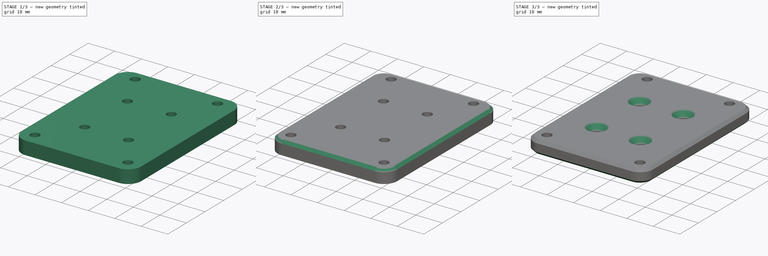
[diagram: build sequence overview — one tinted view per stage of 3, left to right]
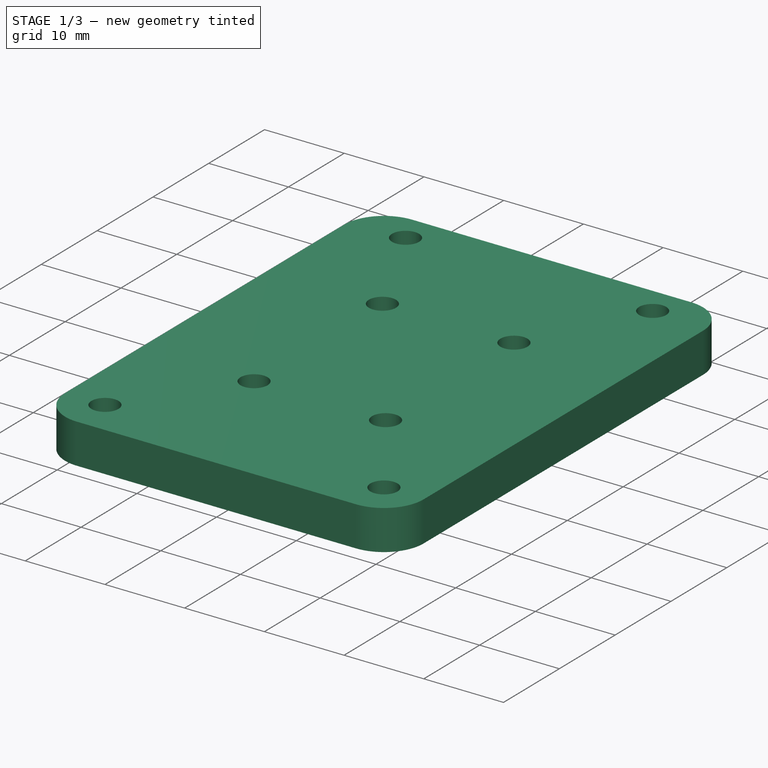
[diagram: stage 1 of 3 — iso view after this stage's code; geometry added in this stage tinted green]
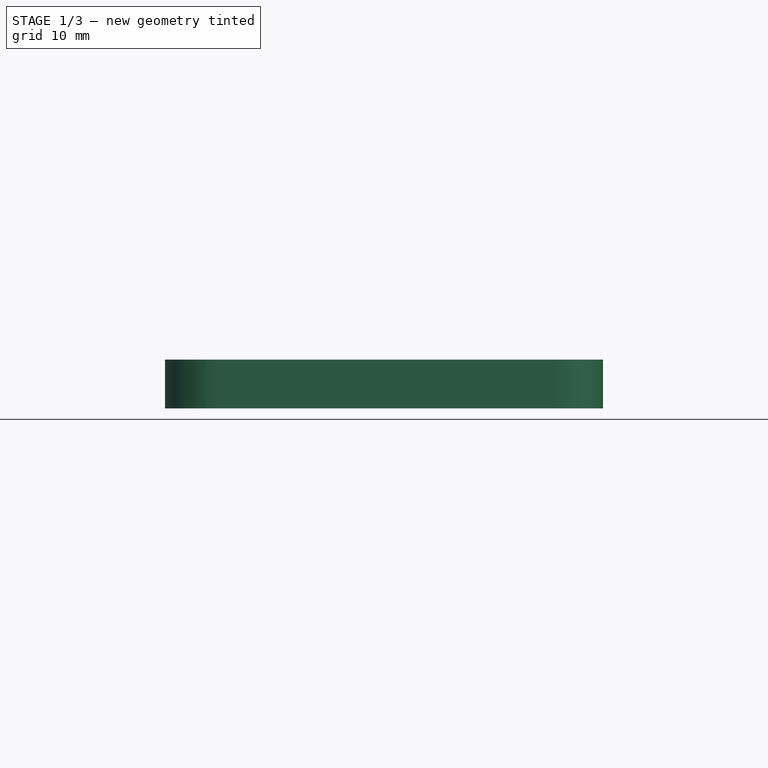
[diagram: stage 1 of 3 — front view after this stage's code; geometry added in this stage tinted green]
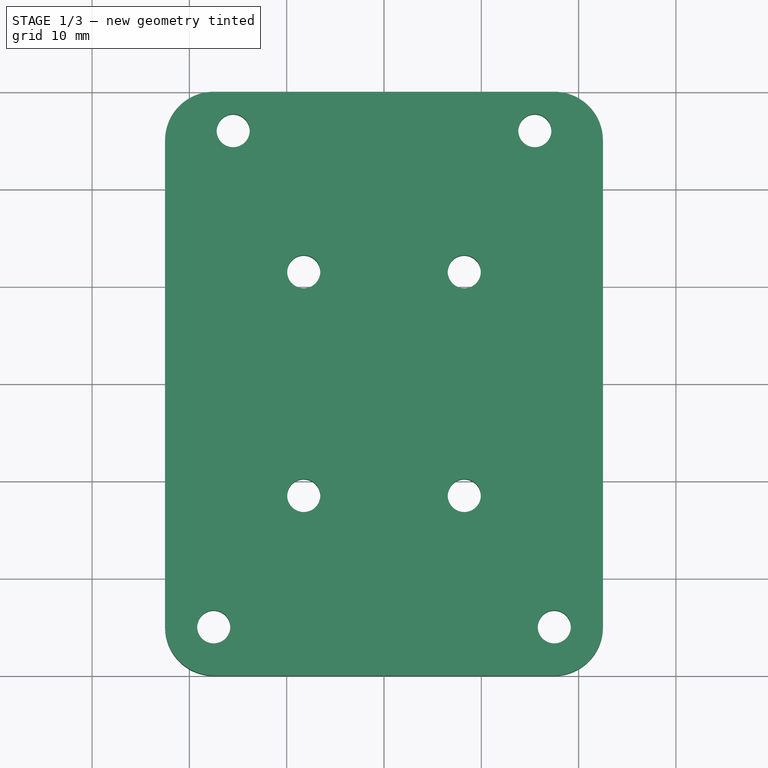
[diagram: stage 1 of 3 — top view after this stage's code; geometry added in this stage tinted green]
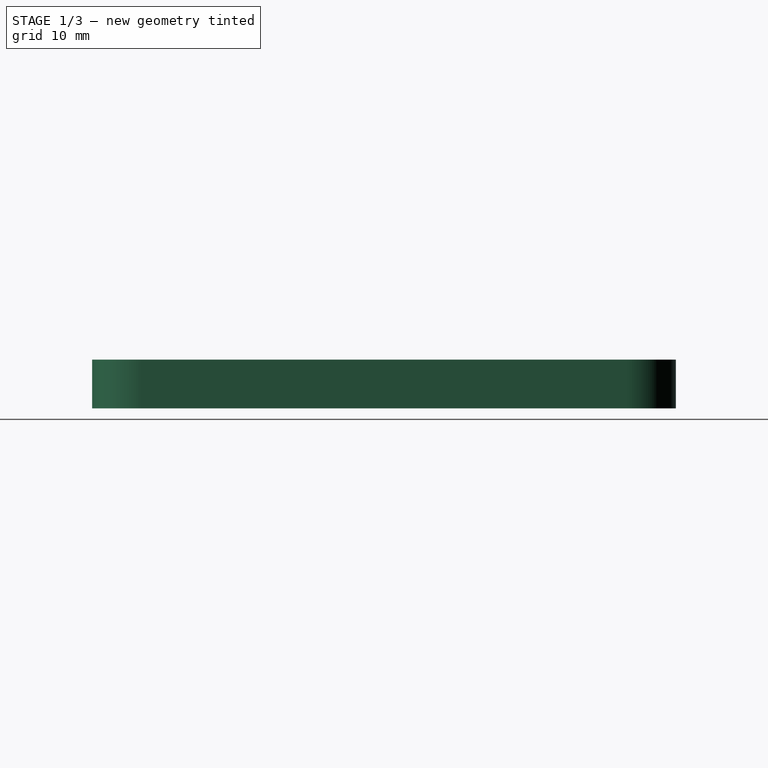
[diagram: stage 1 of 3 — right view after this stage's code; geometry added in this stage tinted green]
FCSTD DOCUMENT  (FreeCAD 0.21R33771 (Git))
Label: oriber3-tap-bracke-second-attempt
License: All rights reserved
LicenseURL: http://en.wikipedia.org/wiki/All_rights_reserved
objects: PartDesign::Chamfer×3, Sketcher::SketchObject×1, PartDesign::Pad×1, PartDesign::Fillet×1, PartDesign::Body×1
note: 12 computed .brp shape members not serialized (recipe doc carries the construction recipe); baked Part::Feature solids carry a one-line shape summary decoded from their .brp

FEATURE [Sketcher::SketchObject] Sketch
  FullyConstrained = false
  MapMode = 5
  Support = -> [XY_Plane]
  sketch-geometry (16):
    g0: LineSegment StartX=22.503 StartY=30 StartZ=0 EndX=22.503 EndY=-30 EndZ=0
    g1: LineSegment StartX=22.503 StartY=-30 StartZ=0 EndX=-22.5832 EndY=-30 EndZ=0
    g2: Circle CenterX=-15.5 CenterY=26 CenterZ=0 NormalX=0 NormalY=0 NormalZ=1 AngleXU=0 Radius=1.7
    g3: Circle CenterX=15.5 CenterY=26 CenterZ=0 NormalX=0 NormalY=0 NormalZ=1 AngleXU=0 Radius=1.7
    g4: Circle CenterX=-17.5 CenterY=-25 CenterZ=0 NormalX=0 NormalY=0 NormalZ=1 AngleXU=0 Radius=1.7
    g5: Circle CenterX=17.5 CenterY=-25 CenterZ=0 NormalX=0 NormalY=0 NormalZ=1 AngleXU=0 Radius=1.7
    g6: Circle CenterX=8.25 CenterY=11.5 CenterZ=0 NormalX=0 NormalY=0 NormalZ=1 AngleXU=0 Radius=1.7
    g7: Circle CenterX=-8.25 CenterY=-11.5 CenterZ=0 NormalX=0 NormalY=0 NormalZ=1 AngleXU=0 Radius=1.7
    g8: Circle CenterX=8.25 CenterY=-11.5 CenterZ=0 NormalX=0 NormalY=0 NormalZ=1 AngleXU=0 Radius=1.7
    g9: Circle CenterX=-8.25 CenterY=11.5 CenterZ=0 NormalX=0 NormalY=0 NormalZ=1 AngleXU=0 Radius=1.7
    g10: LineSegment StartX=22.503 StartY=27.4562 StartZ=0 EndX=-22.9253 EndY=27.4562 EndZ=0
    g11: LineSegment StartX=-22.9253 StartY=27.4562 StartZ=0 EndX=-22.9253 EndY=17.4562 EndZ=0
    g12: LineSegment StartX=-22.9253 StartY=17.4562 StartZ=0 EndX=-11.8787 EndY=11.8436 EndZ=0
    g13: LineSegment StartX=-11.8787 StartY=11.8436 StartZ=0 EndX=-11.8787 EndY=-11.5171 EndZ=0
    g14: LineSegment StartX=-11.8787 StartY=-11.5171 StartZ=0 EndX=-22.5832 EndY=-14.7061 EndZ=0
    g15: LineSegment StartX=-22.5832 StartY=-14.7061 StartZ=0 EndX=-22.5832 EndY=-30 EndZ=0
  constraints (40):
    c: Coincident(g0,g1)
    c: Horizontal(g1)
    c: Vertical(g0)
    c: DistanceY(g0,g0) = 60
    c: Diameter(g2) = 3.4
    c: DistanceY(g-1,g2) = 26
    c: DistanceX(g2,g-1) = 15.5
    c: Diameter(g3) = 3.4
    c: Diameter(g4) = 3.4
    c: Diameter(g5) = 3.4
    c: DistanceY(g2,g3) = 0
    c: DistanceY(g4,g5) = 0
    c: DistanceY(g4,g2) = 51
    c: DistanceX(g4,g-1) = 17.5
    c: DistanceX(g4,g5) = 35
    c: DistanceX(g2,g3) = 31
    c: Diameter(g6) = 3.4
    c: Diameter(g9) = 3.4
    c: Diameter(g8) = 3.4
    c: Diameter(g7) = 3.4
    c: DistanceY(g6,g9) = 0
    c: DistanceX(g6,g8) = 0
    c: DistanceX(g7,g9) = 0
    c: DistanceY(g8,g6) = 23
    c: DistanceY(g8,g7) = 0
    c: DistanceX(g9,g6) = 16.5
    c: DistanceX(g9,g-1) = 8.25
    c: DistanceY(g-1,g6) = 11.5
    c: PointOnObject(g10,g0)
    c: Horizontal(g10)
    c: Coincident(g10,g11)
    c: Vertical(g11)
    c: Coincident(g11,g12)
    c: Coincident(g12,g13)
    c: Vertical(g13)
    c: Coincident(g13,g14)
    c: Coincident(g14,g15)
    c: Coincident(g15,g1)
    c: Perpendicular(g1,g15)
    c: DistanceY(g11,g11) = 10
FEATURE [PartDesign::Pad] Pad
  Direction = (0,0,1)
  Length = 5
  Length2 = 10
  Profile = -> Sketch
  ReferenceAxis = -> Sketch [N_Axis]
  Type = 0
FEATURE [PartDesign::Fillet] Fillet
  Base = -> Pad [Edge8,Edge1,Edge5,Edge2]
  BaseFeature = -> Pad
  Radius = 5
  SupportTransform = false
  UseAllEdges = false
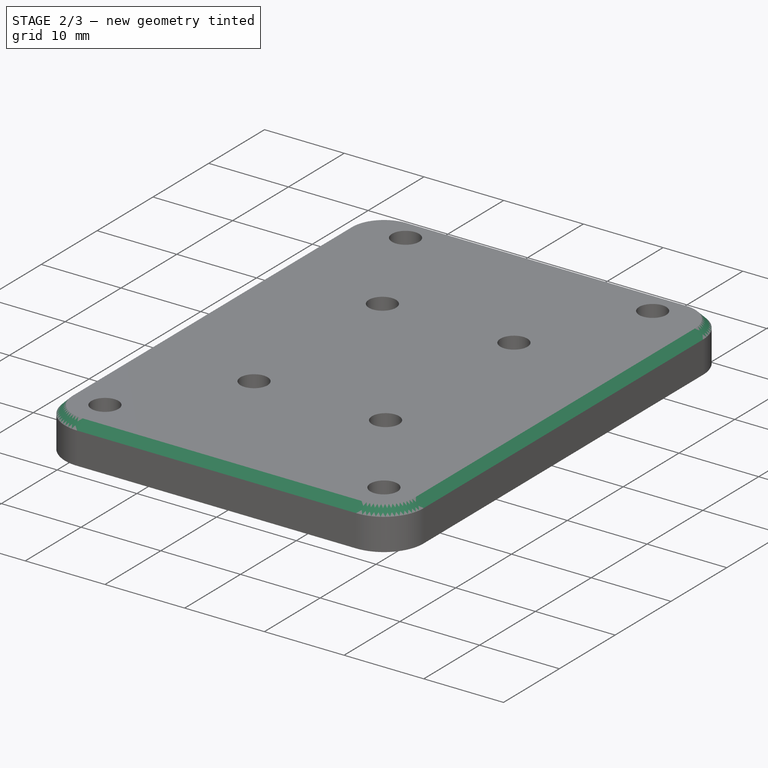
[diagram: stage 2 of 3 — iso view after this stage's code; geometry added in this stage tinted green]
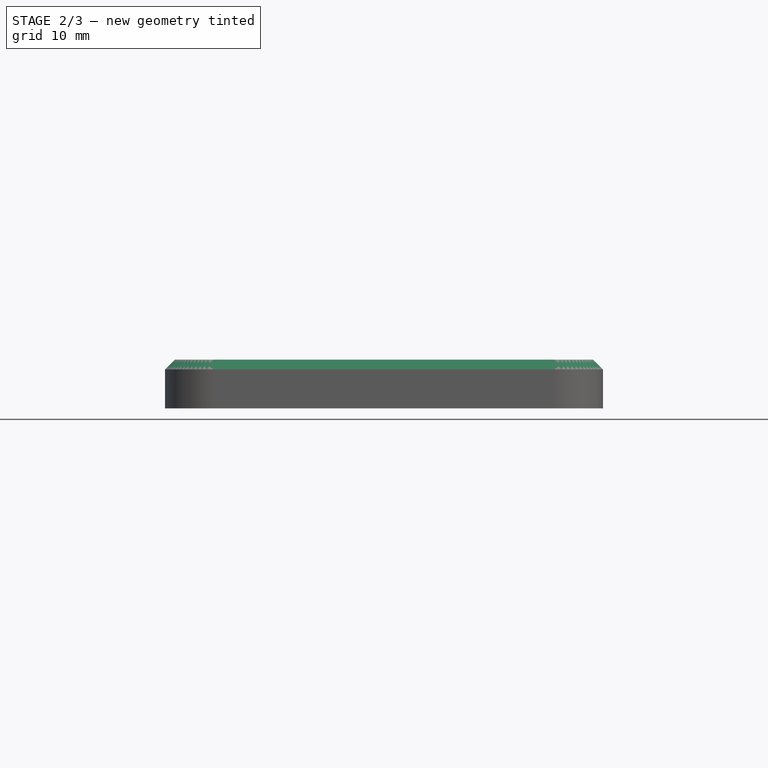
[diagram: stage 2 of 3 — front view after this stage's code; geometry added in this stage tinted green]
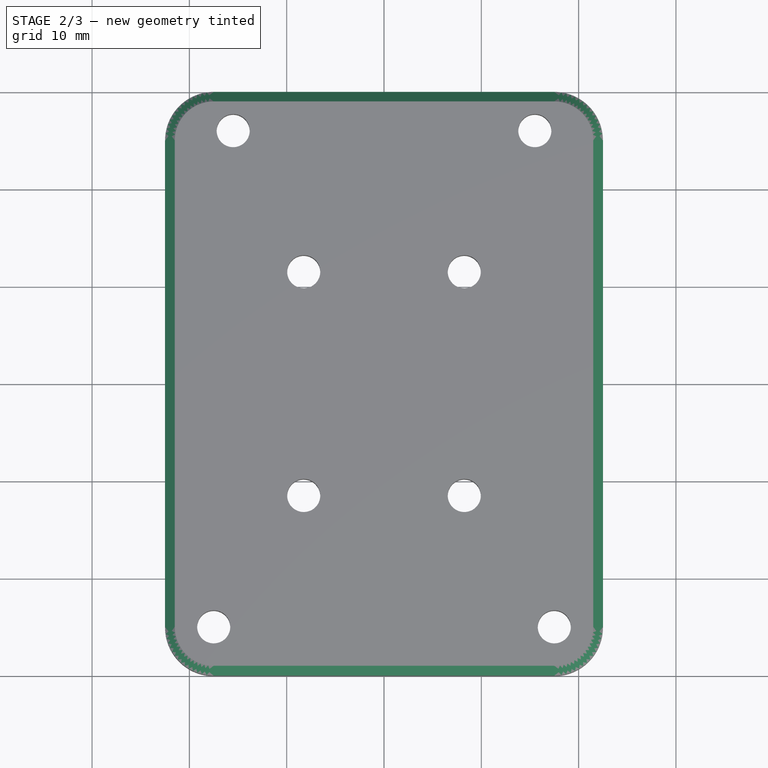
[diagram: stage 2 of 3 — top view after this stage's code; geometry added in this stage tinted green]
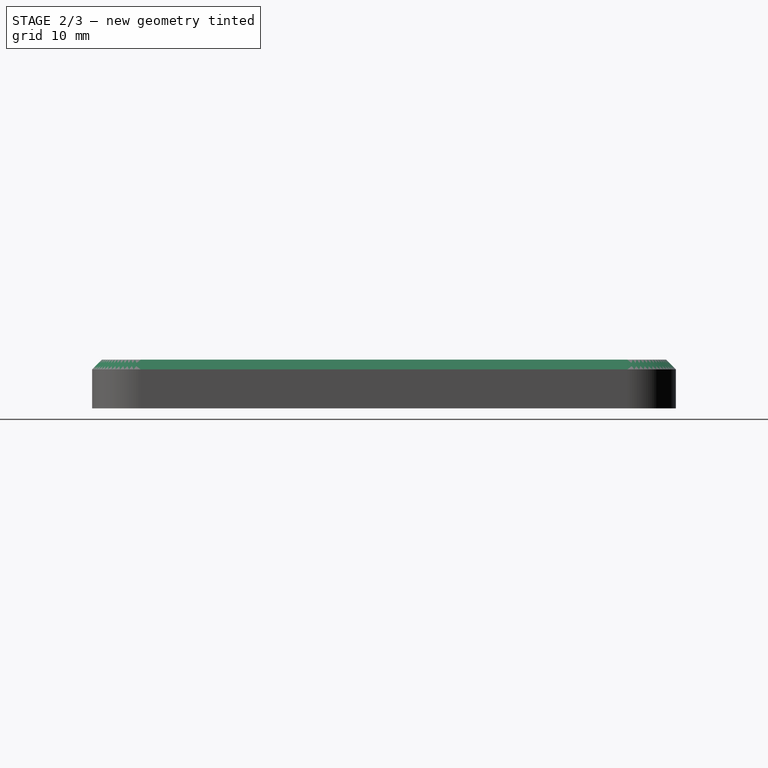
[diagram: stage 2 of 3 — right view after this stage's code; geometry added in this stage tinted green]
FEATURE [PartDesign::Chamfer] Chamfer
  Angle = 45
  Base = -> Fillet [Edge4,Edge24,Edge28,Edge25]
  BaseFeature = -> Fillet
  ChamferType = 0
  FlipDirection = false
  Size = 1
  Size2 = 1
  SupportTransform = false
  UseAllEdges = false
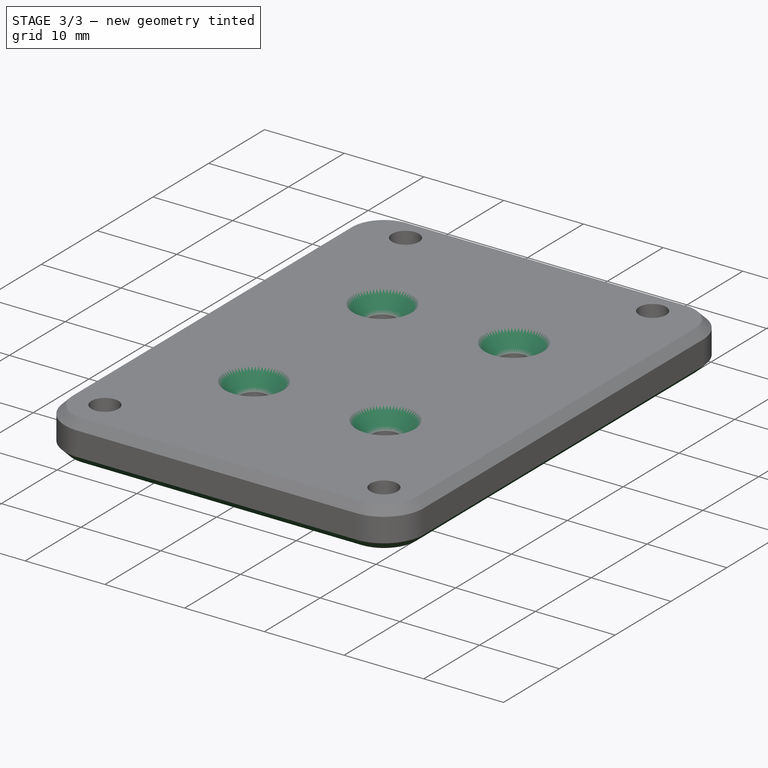
[diagram: stage 3 of 3 — iso view after this stage's code; geometry added in this stage tinted green]
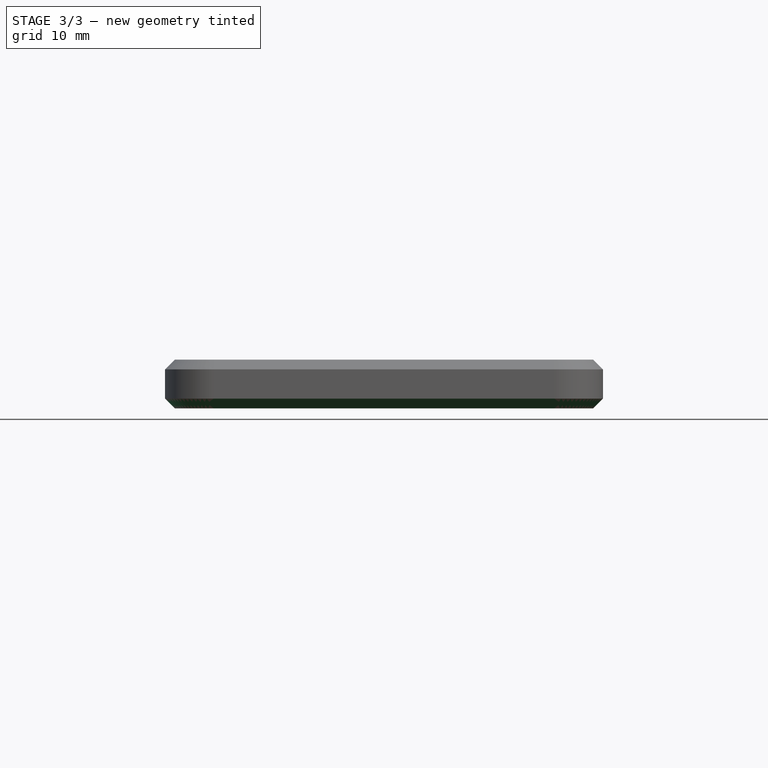
[diagram: stage 3 of 3 — front view after this stage's code; geometry added in this stage tinted green]
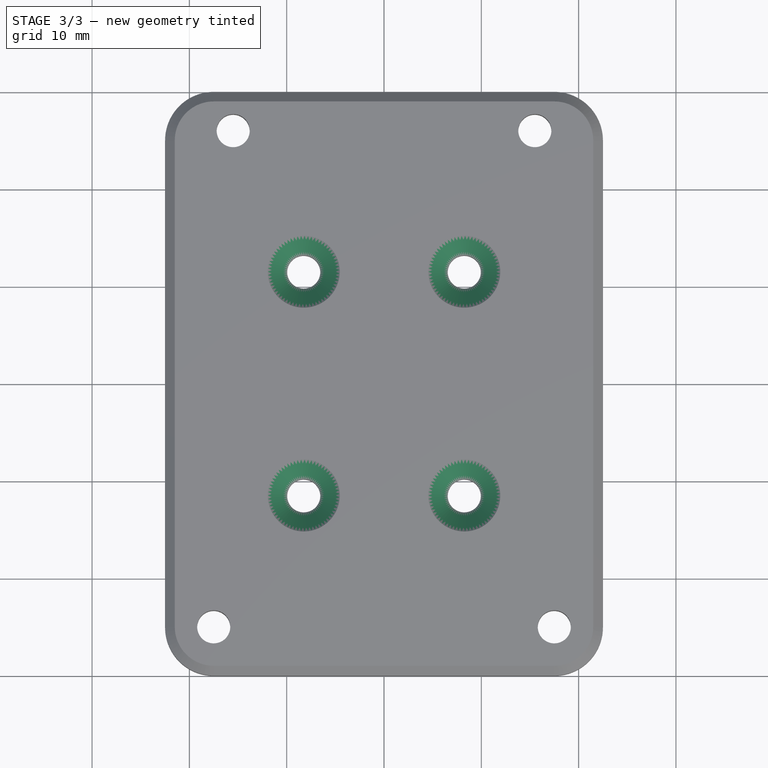
[diagram: stage 3 of 3 — top view after this stage's code; geometry added in this stage tinted green]
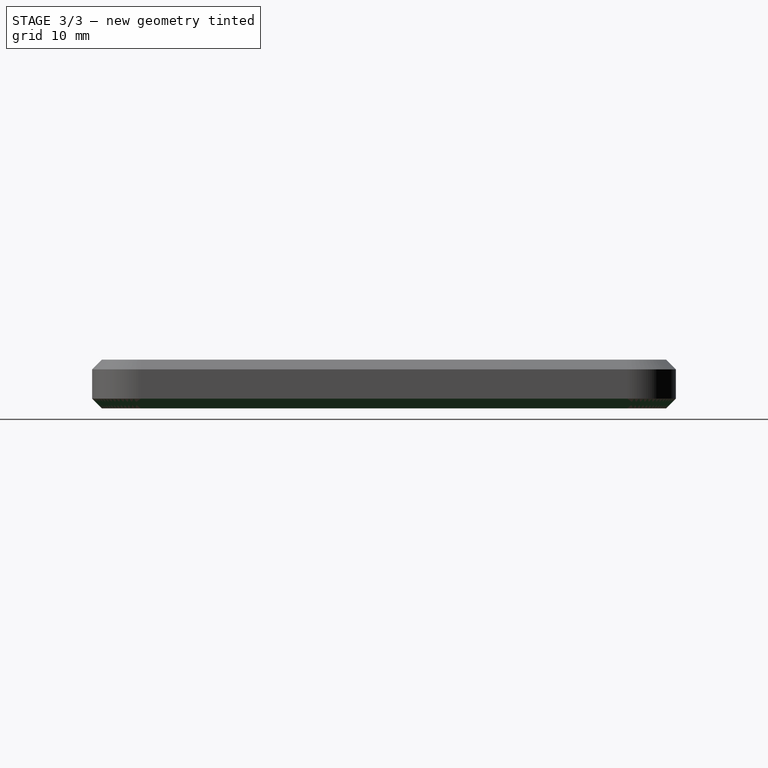
[diagram: stage 3 of 3 — right view after this stage's code; geometry added in this stage tinted green]
FEATURE [PartDesign::Chamfer] Chamfer001
  Angle = 45
  Base = -> Chamfer [Edge38,Edge40,Edge39,Edge41]
  BaseFeature = -> Chamfer
  ChamferType = 0
  FlipDirection = false
  Size = 2
  Size2 = 1
  SupportTransform = false
  UseAllEdges = false
FEATURE [PartDesign::Chamfer] Chamfer002
  Angle = 45
  Base = -> Chamfer001 [Edge66,Edge59,Edge52,Edge60]
  BaseFeature = -> Chamfer001
  ChamferType = 0
  FlipDirection = false
  Size = 1
  Size2 = 1
  SupportTransform = false
  UseAllEdges = false
FEATURE [PartDesign::Body] Body
  Group = -> [Sketch,Pad,Fillet,Chamfer,Chamfer001,Chamfer002]
  Origin = -> Origin
  Tip = -> Chamfer002
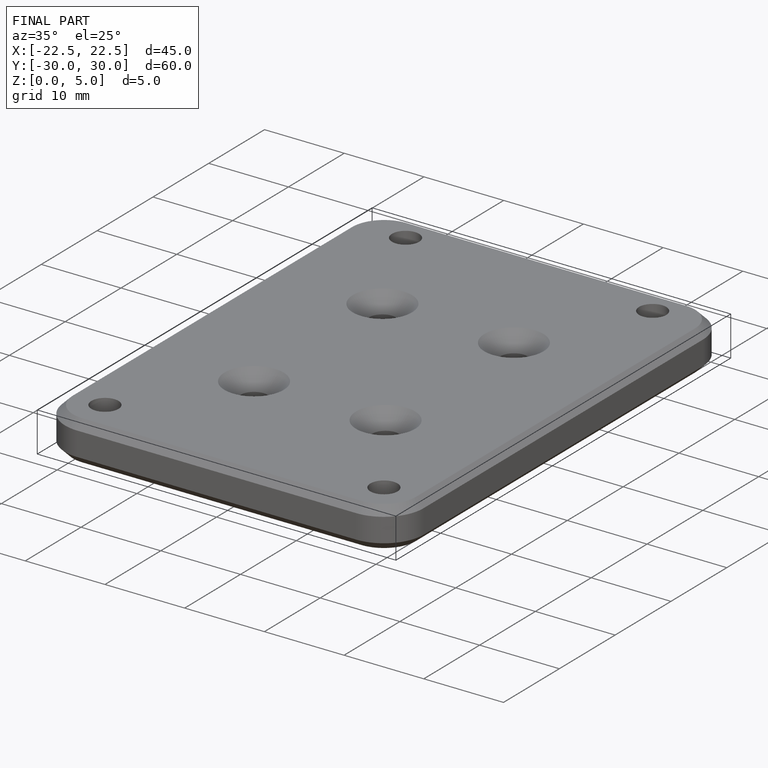
[diagram: finished part — iso view with bounding-box wireframe]
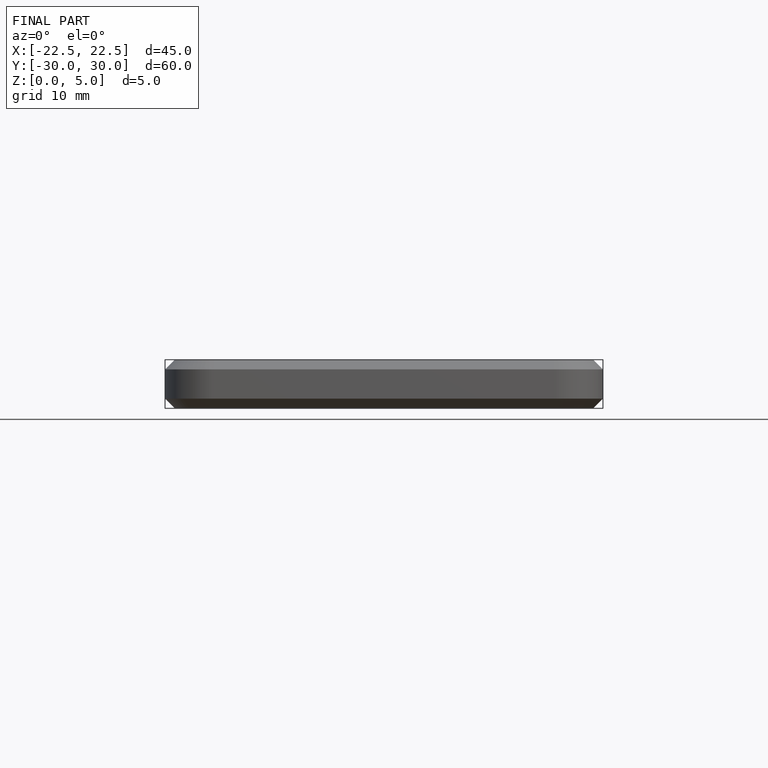
[diagram: finished part — front view with bounding-box wireframe]
